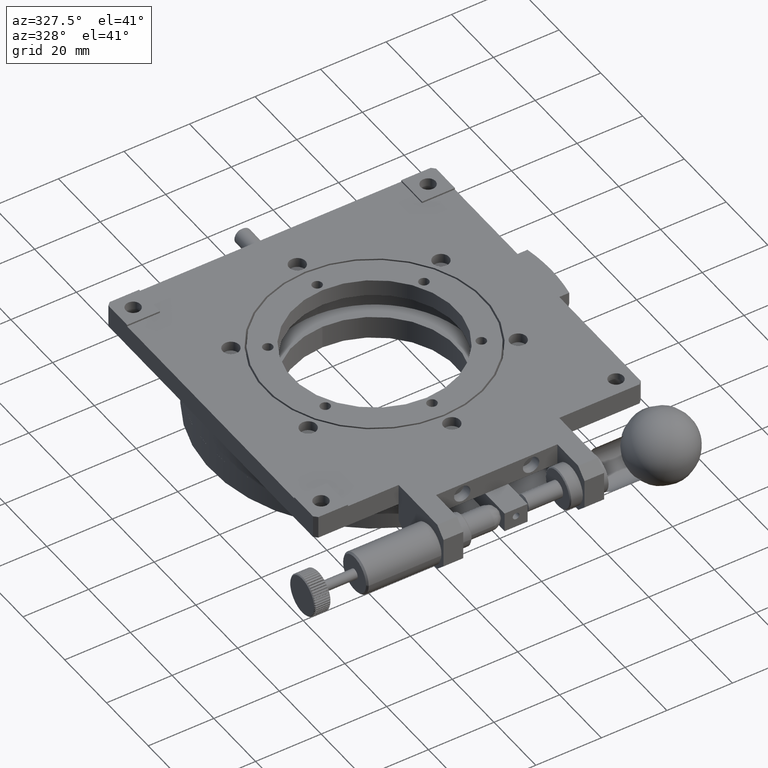
[diagram: clean part render]
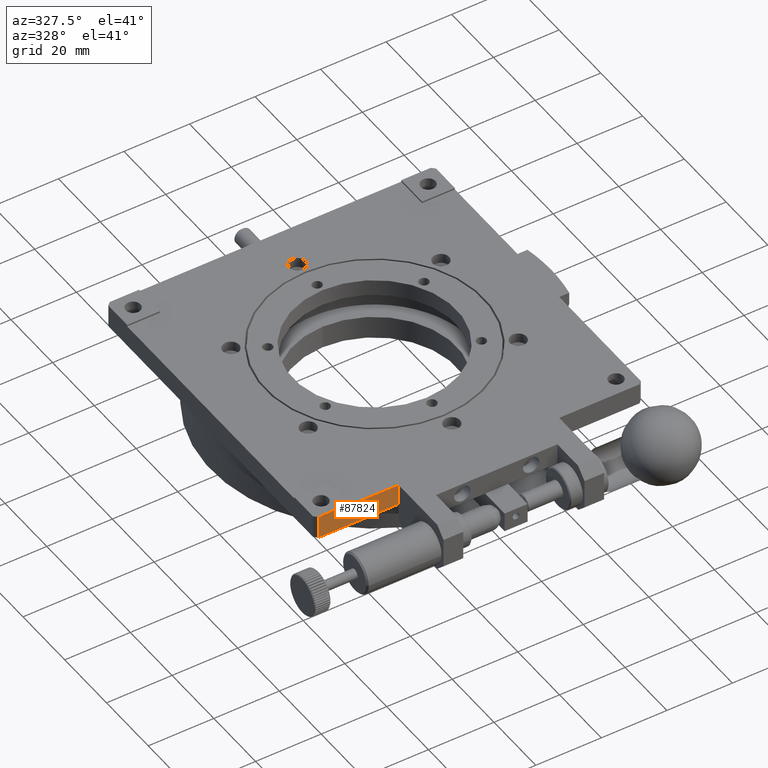
[diagram: same view with one face highlighted and labeled with its STEP entity id]
A machine part, auxiliary view. The second image highlights one B-rep face of the part: STEP entity #87824.
In plain terms, the highlighted planar face has unit normal (-0, 1, 0).
Its self-contained STEP definition (entity closure, byte-faithful):
#1953 = DIRECTION ( 'NONE',  ( -0.000000000000000000, 1.000000000000000000, 0.000000000000000000 ) ) ;
#4293 = EDGE_CURVE ( 'NONE', #51857, #41360, #85226, .T. ) ;
#8100 = CARTESIAN_POINT ( 'NONE',  ( -39.99999999999999289, -50.00000000000000000, 0.5000000000000001110 ) ) ;
#8353 = CARTESIAN_POINT ( 'NONE',  ( -49.00000000000000711, -50.00000000000000000, 0.5000000000000028866 ) ) ;
#8412 = CARTESIAN_POINT ( 'NONE',  ( -24.50000000000000355, -50.00000000000000000, -6.500000000000000888 ) ) ;
#9890 = ORIENTED_EDGE ( 'NONE', *, *, #89229, .T. ) ;
#10269 = DIRECTION ( 'NONE',  ( 0.000000000000000000, 0.000000000000000000, -1.000000000000000000 ) ) ;
#12178 = DIRECTION ( 'NONE',  ( 0.000000000000000000, 0.000000000000000000, -1.000000000000000000 ) ) ;
#14063 = AXIS2_PLACEMENT_3D ( 'NONE', #81066, #1953, #87982 ) ;
#17342 = CARTESIAN_POINT ( 'NONE',  ( -24.50000000000000000, -50.00000000000000000, -0.000000000000000000 ) ) ;
#17560 = EDGE_CURVE ( 'NONE', #32771, #51857, #45867, .T. ) ;
#20619 = ORIENTED_EDGE ( 'NONE', *, *, #65128, .F. ) ;
#23135 = FACE_OUTER_BOUND ( 'NONE', #75806, .T. ) ;
#25740 = LINE ( 'NONE', #46888, #49129 ) ;
#31836 = VERTEX_POINT ( 'NONE', #70825 ) ;
#32771 = VERTEX_POINT ( 'NONE', #80515 ) ;
#35268 = ORIENTED_EDGE ( 'NONE', *, *, #17560, .F. ) ;
#36669 = CARTESIAN_POINT ( 'NONE',  ( -49.00000000000000000, -50.00000000000000000, -6.500000000000000888 ) ) ;
#41360 = VERTEX_POINT ( 'NONE', #8100 ) ;
#41745 = EDGE_CURVE ( 'NONE', #82117, #32771, #25740, .T. ) ;
#41940 = ORIENTED_EDGE ( 'NONE', *, *, #4293, .F. ) ;
#42781 = ORIENTED_EDGE ( 'NONE', *, *, #66943, .F. ) ;
#44342 = CARTESIAN_POINT ( 'NONE',  ( -24.50000000000000711, -50.00000000000000000, -6.500000000000000888 ) ) ;
#45867 = LINE ( 'NONE', #36669, #51343 ) ;
#46888 = CARTESIAN_POINT ( 'NONE',  ( 49.00000000000000000, -50.00000000000000000, -6.500000000000000888 ) ) ;
#47636 = DIRECTION ( 'NONE',  ( -1.000000000000000000, -0.000000000000000000, -0.000000000000000000 ) ) ;
#49129 = VECTOR ( 'NONE', #54681, 1000.000000000000000 ) ;
#50285 = VERTEX_POINT ( 'NONE', #17342 ) ;
#51343 = VECTOR ( 'NONE', #57850, 1000.000000000000000 ) ;
#51857 = VERTEX_POINT ( 'NONE', #8353 ) ;
#54523 = LINE ( 'NONE', #74835, #65477 ) ;
#54681 = DIRECTION ( 'NONE',  ( -1.000000000000000000, -0.000000000000000000, -0.000000000000000000 ) ) ;
#57850 = DIRECTION ( 'NONE',  ( -0.000000000000000000, -0.000000000000000000, 1.000000000000000000 ) ) ;
#60489 = LINE ( 'NONE', #75242, #82450 ) ;
#63388 = VECTOR ( 'NONE', #10269, 1000.000000000000000 ) ;
#65128 = EDGE_CURVE ( 'NONE', #41360, #31836, #60489, .T. ) ;
#65477 = VECTOR ( 'NONE', #47636, 1000.000000000000000 ) ;
#66943 = EDGE_CURVE ( 'NONE', #50285, #82117, #88071, .T. ) ;
#70066 = DIRECTION ( 'NONE',  ( 1.000000000000000000, 0.000000000000000000, 0.000000000000000000 ) ) ;
#70825 = CARTESIAN_POINT ( 'NONE',  ( -39.99999999999999289, -50.00000000000000000, -0.000000000000000000 ) ) ;
#72825 = PLANE ( 'NONE',  #14063 ) ;
#74835 = CARTESIAN_POINT ( 'NONE',  ( 5.551115123125780178E-14, -50.00000000000000000, 0.000000000000000000 ) ) ;
#75242 = CARTESIAN_POINT ( 'NONE',  ( -40.00000000000000000, -50.00000000000000000, 0.5000000000000000000 ) ) ;
#75806 = EDGE_LOOP ( 'NONE', ( #42781, #9890, #20619, #41940, #35268, #80101 ) ) ;
#76966 = CARTESIAN_POINT ( 'NONE',  ( 49.00000000000000000, -50.00000000000000000, 0.5000000000000004441 ) ) ;
#80101 = ORIENTED_EDGE ( 'NONE', *, *, #41745, .F. ) ;
#80515 = CARTESIAN_POINT ( 'NONE',  ( -49.00000000000000000, -50.00000000000000000, -6.500000000000000888 ) ) ;
#81066 = CARTESIAN_POINT ( 'NONE',  ( 49.00000000000000000, -50.00000000000000000, -6.500000000000000888 ) ) ;
#81512 = VECTOR ( 'NONE', #70066, 1000.000000000000000 ) ;
#82117 = VERTEX_POINT ( 'NONE', #8412 ) ;
#82450 = VECTOR ( 'NONE', #12178, 1000.000000000000000 ) ;
#85226 = LINE ( 'NONE', #76966, #81512 ) ;
#87824 = ADVANCED_FACE ( 'NONE', ( #23135 ), #72825, .F. ) ;
#87982 = DIRECTION ( 'NONE',  ( 1.000000000000000000, 0.000000000000000000, 0.000000000000000000 ) ) ;
#88071 = LINE ( 'NONE', #44342, #63388 ) ;
#89229 = EDGE_CURVE ( 'NONE', #50285, #31836, #54523, .T. ) ;